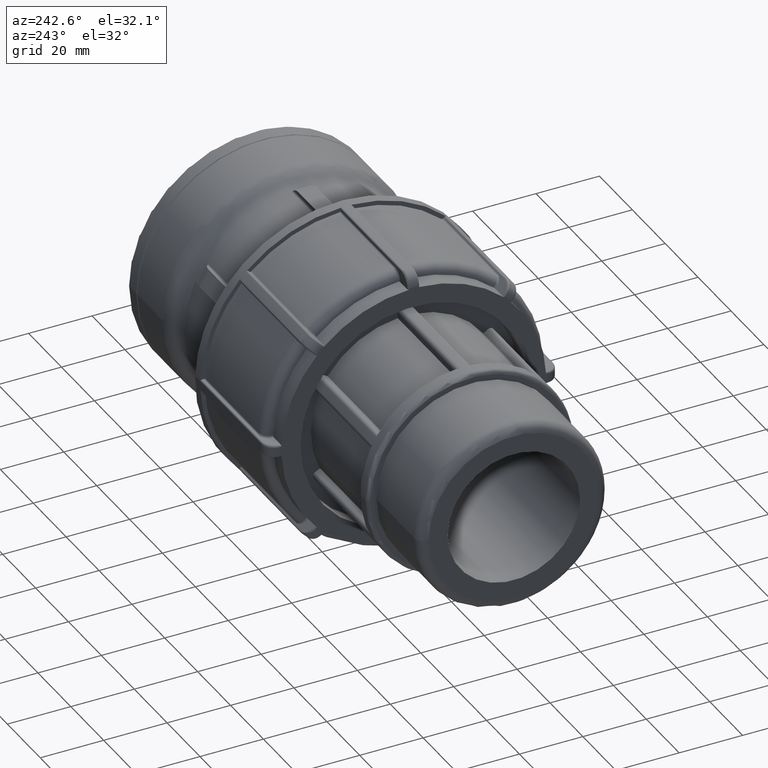
[diagram: clean part render]
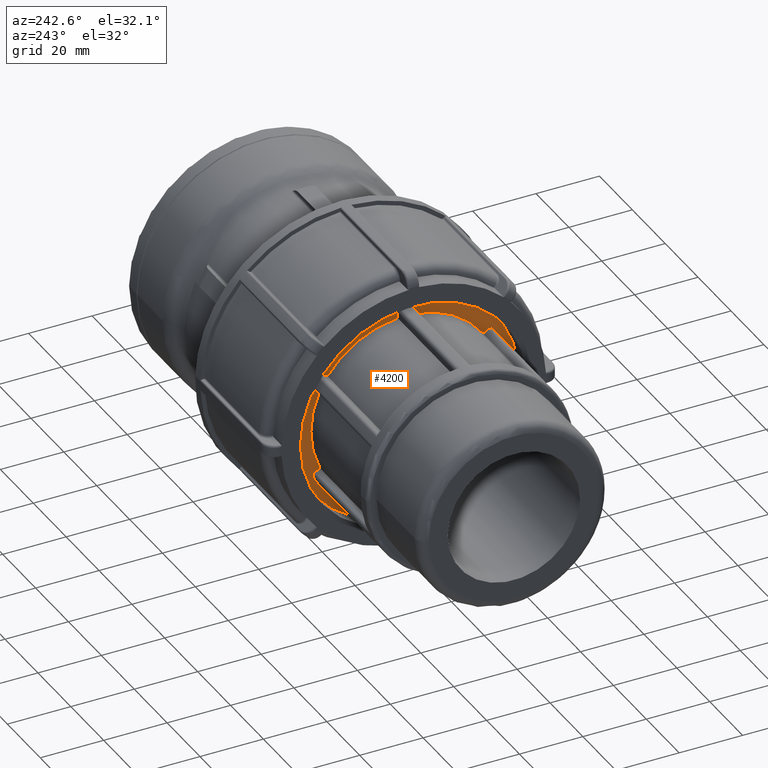
[diagram: same view with one face highlighted and labeled with its STEP entity id]
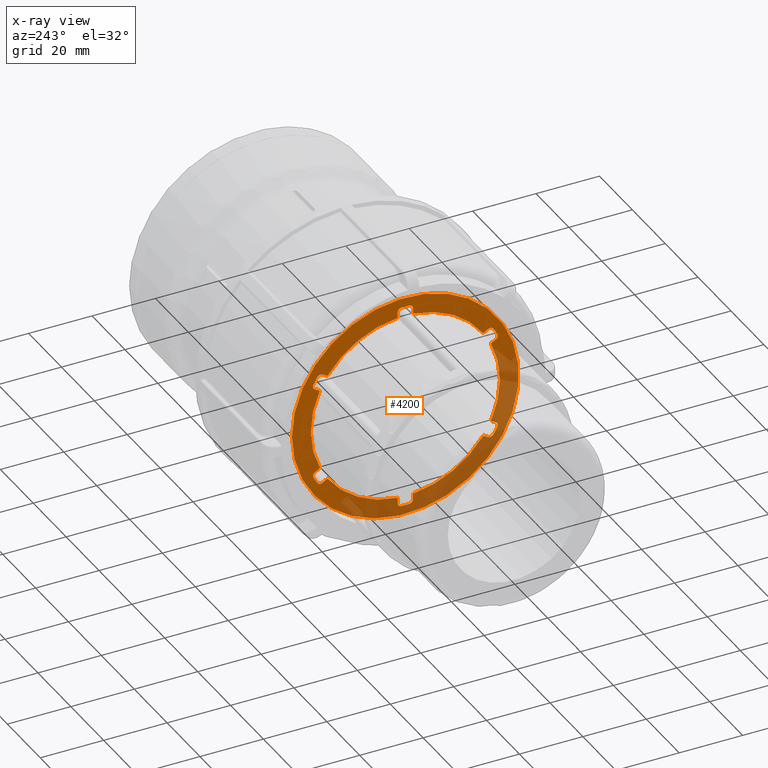
[diagram: x-ray of the same camera — body ghosted, the highlighted face saturated]
A machine part, auxiliary view. The second image highlights one B-rep face of the part: STEP entity #4200.
The next image is the same camera in x-ray: the body ghosted, the highlighted face saturated — about 39% of this face is hidden behind the body in this view.
In plain terms, the highlighted planar face has unit normal (-1, 0, 0).
Its self-contained STEP definition (entity closure, byte-faithful):
#67=FACE_BOUND('',#1218,.T.);
#136=PLANE('',#4620);
#152=LINE('',#5878,#399);
#167=LINE('',#5978,#414);
#172=LINE('',#6034,#419);
#177=LINE('',#6090,#424);
#182=LINE('',#6146,#429);
#189=LINE('',#6211,#436);
#191=LINE('',#6218,#438);
#381=LINE('',#8843,#628);
#384=LINE('',#8849,#631);
#387=LINE('',#8855,#634);
#390=LINE('',#8861,#637);
#391=LINE('',#8867,#638);
#399=VECTOR('',#4705,1.86145163890618);
#414=VECTOR('',#4760,1.86145163890618);
#419=VECTOR('',#4779,1.86145163890618);
#424=VECTOR('',#4798,1.86145163890618);
#429=VECTOR('',#4817,1.86145163890617);
#436=VECTOR('',#4846,1.86145163890617);
#438=VECTOR('',#4854,1.86145163890618);
#628=VECTOR('',#5672,1.86145163890618);
#631=VECTOR('',#5677,1.86145163890618);
#634=VECTOR('',#5682,1.86145163890618);
#637=VECTOR('',#5687,1.86145163890618);
#638=VECTOR('',#5694,1.86145163890618);
#957=FACE_OUTER_BOUND('',#1217,.T.);
#1217=EDGE_LOOP('',(#3795));
#1218=EDGE_LOOP('',(#3796,#3797,#3798,#3799,#3800,#3801,#3802,#3803,#3804,
#3805,#3806,#3807,#3808,#3809,#3810,#3811,#3812,#3813,#3814,#3815,#3816,
#3817,#3818,#3819,#3820,#3821,#3822,#3823,#3824,#3825,#3826,#3827,#3828,
#3829,#3830,#3831));
#1421=CIRCLE('',#4244,1.19228);
#1422=CIRCLE('',#4246,1.19228);
#1424=CIRCLE('',#4250,32.7877);
#1426=CIRCLE('',#4252,32.7877);
#1428=CIRCLE('',#4254,32.7877);
#1430=CIRCLE('',#4256,32.7877);
#1432=CIRCLE('',#4258,32.7877);
#1434=CIRCLE('',#4260,32.7877);
#1436=CIRCLE('',#4264,1.19228);
#1437=CIRCLE('',#4266,1.19228);
#1439=CIRCLE('',#4271,1.19228);
#1440=CIRCLE('',#4273,1.19228);
#1442=CIRCLE('',#4278,1.19228);
#1443=CIRCLE('',#4280,1.19228);
#1445=CIRCLE('',#4285,1.19228);
#1446=CIRCLE('',#4287,1.19228);
#1450=CIRCLE('',#4296,1.19228);
#1451=CIRCLE('',#4298,1.19228);
#1627=CIRCLE('',#4621,35.7684);
#1628=CIRCLE('',#4622,29.807);
#1629=CIRCLE('',#4623,29.807);
#1630=CIRCLE('',#4624,29.807);
#1631=CIRCLE('',#4625,29.807);
#1632=CIRCLE('',#4626,29.807);
#1633=CIRCLE('',#4627,29.807);
#1658=VERTEX_POINT('',#5865);
#1659=VERTEX_POINT('',#5867);
#1660=VERTEX_POINT('',#5871);
#1661=VERTEX_POINT('',#5873);
#1662=VERTEX_POINT('',#5877);
#1665=VERTEX_POINT('',#5885);
#1668=VERTEX_POINT('',#5891);
#1669=VERTEX_POINT('',#5893);
#1672=VERTEX_POINT('',#5899);
#1673=VERTEX_POINT('',#5901);
#1676=VERTEX_POINT('',#5907);
#1677=VERTEX_POINT('',#5909);
#1680=VERTEX_POINT('',#5915);
#1681=VERTEX_POINT('',#5917);
#1684=VERTEX_POINT('',#5923);
#1689=VERTEX_POINT('',#5969);
#1690=VERTEX_POINT('',#5973);
#1691=VERTEX_POINT('',#5977);
#1697=VERTEX_POINT('',#6025);
#1698=VERTEX_POINT('',#6029);
#1699=VERTEX_POINT('',#6033);
#1705=VERTEX_POINT('',#6081);
#1706=VERTEX_POINT('',#6085);
#1707=VERTEX_POINT('',#6089);
#1713=VERTEX_POINT('',#6137);
#1714=VERTEX_POINT('',#6141);
#1715=VERTEX_POINT('',#6145);
#1723=VERTEX_POINT('',#6199);
#1724=VERTEX_POINT('',#6203);
#1726=VERTEX_POINT('',#6209);
#1728=VERTEX_POINT('',#6217);
#2053=VERTEX_POINT('',#8841);
#2055=VERTEX_POINT('',#8847);
#2057=VERTEX_POINT('',#8853);
#2059=VERTEX_POINT('',#8859);
#2060=VERTEX_POINT('',#8863);
#2061=VERTEX_POINT('',#8866);
#2077=EDGE_CURVE('',#1658,#1659,#1421,.F.);
#2080=EDGE_CURVE('',#1660,#1661,#1422,.F.);
#2082=EDGE_CURVE('',#1662,#1659,#152,.T.);
#2086=EDGE_CURVE('',#1665,#1661,#1424,.T.);
#2090=EDGE_CURVE('',#1669,#1668,#1426,.T.);
#2094=EDGE_CURVE('',#1673,#1672,#1428,.T.);
#2098=EDGE_CURVE('',#1677,#1676,#1430,.T.);
#2102=EDGE_CURVE('',#1681,#1680,#1432,.T.);
#2106=EDGE_CURVE('',#1658,#1684,#1434,.T.);
#2112=EDGE_CURVE('',#1681,#1689,#1436,.F.);
#2115=EDGE_CURVE('',#1690,#1684,#1437,.F.);
#2116=EDGE_CURVE('',#1691,#1689,#167,.T.);
#2124=EDGE_CURVE('',#1677,#1697,#1439,.F.);
#2127=EDGE_CURVE('',#1698,#1680,#1440,.F.);
#2128=EDGE_CURVE('',#1699,#1697,#172,.T.);
#2136=EDGE_CURVE('',#1673,#1705,#1442,.F.);
#2139=EDGE_CURVE('',#1706,#1676,#1443,.F.);
#2140=EDGE_CURVE('',#1707,#1705,#177,.T.);
#2148=EDGE_CURVE('',#1669,#1713,#1445,.F.);
#2151=EDGE_CURVE('',#1714,#1672,#1446,.F.);
#2152=EDGE_CURVE('',#1715,#1713,#182,.T.);
#2163=EDGE_CURVE('',#1723,#1668,#1450,.F.);
#2164=EDGE_CURVE('',#1665,#1724,#1451,.F.);
#2168=EDGE_CURVE('',#1723,#1726,#189,.T.);
#2171=EDGE_CURVE('',#1728,#1724,#191,.T.);
#2663=EDGE_CURVE('',#1714,#2053,#381,.T.);
#2666=EDGE_CURVE('',#1706,#2055,#384,.T.);
#2669=EDGE_CURVE('',#1698,#2057,#387,.T.);
#2672=EDGE_CURVE('',#1690,#2059,#390,.T.);
#2673=EDGE_CURVE('',#2060,#2060,#1627,.T.);
#2674=EDGE_CURVE('',#1726,#1728,#1628,.T.);
#2675=EDGE_CURVE('',#1660,#2061,#391,.T.);
#2676=EDGE_CURVE('',#2061,#1662,#1629,.T.);
#2677=EDGE_CURVE('',#2059,#1691,#1630,.T.);
#2678=EDGE_CURVE('',#2057,#1699,#1631,.T.);
#2679=EDGE_CURVE('',#2055,#1707,#1632,.T.);
#2680=EDGE_CURVE('',#2053,#1715,#1633,.T.);
#3795=ORIENTED_EDGE('',*,*,#2673,.F.);
#3796=ORIENTED_EDGE('',*,*,#2152,.T.);
#3797=ORIENTED_EDGE('',*,*,#2148,.F.);
#3798=ORIENTED_EDGE('',*,*,#2090,.T.);
#3799=ORIENTED_EDGE('',*,*,#2163,.F.);
#3800=ORIENTED_EDGE('',*,*,#2168,.T.);
#3801=ORIENTED_EDGE('',*,*,#2674,.T.);
#3802=ORIENTED_EDGE('',*,*,#2171,.T.);
#3803=ORIENTED_EDGE('',*,*,#2164,.F.);
#3804=ORIENTED_EDGE('',*,*,#2086,.T.);
#3805=ORIENTED_EDGE('',*,*,#2080,.F.);
#3806=ORIENTED_EDGE('',*,*,#2675,.T.);
#3807=ORIENTED_EDGE('',*,*,#2676,.T.);
#3808=ORIENTED_EDGE('',*,*,#2082,.T.);
#3809=ORIENTED_EDGE('',*,*,#2077,.F.);
#3810=ORIENTED_EDGE('',*,*,#2106,.T.);
#3811=ORIENTED_EDGE('',*,*,#2115,.F.);
#3812=ORIENTED_EDGE('',*,*,#2672,.T.);
#3813=ORIENTED_EDGE('',*,*,#2677,.T.);
#3814=ORIENTED_EDGE('',*,*,#2116,.T.);
#3815=ORIENTED_EDGE('',*,*,#2112,.F.);
#3816=ORIENTED_EDGE('',*,*,#2102,.T.);
#3817=ORIENTED_EDGE('',*,*,#2127,.F.);
#3818=ORIENTED_EDGE('',*,*,#2669,.T.);
#3819=ORIENTED_EDGE('',*,*,#2678,.T.);
#3820=ORIENTED_EDGE('',*,*,#2128,.T.);
#3821=ORIENTED_EDGE('',*,*,#2124,.F.);
#3822=ORIENTED_EDGE('',*,*,#2098,.T.);
#3823=ORIENTED_EDGE('',*,*,#2139,.F.);
#3824=ORIENTED_EDGE('',*,*,#2666,.T.);
#3825=ORIENTED_EDGE('',*,*,#2679,.T.);
#3826=ORIENTED_EDGE('',*,*,#2140,.T.);
#3827=ORIENTED_EDGE('',*,*,#2136,.F.);
#3828=ORIENTED_EDGE('',*,*,#2094,.T.);
#3829=ORIENTED_EDGE('',*,*,#2151,.F.);
#3830=ORIENTED_EDGE('',*,*,#2663,.T.);
#3831=ORIENTED_EDGE('',*,*,#2680,.T.);
#4200=ADVANCED_FACE('',(#957,#67),#136,.T.);
#4244=AXIS2_PLACEMENT_3D('',#5868,#4694,#4695);
#4246=AXIS2_PLACEMENT_3D('',#5874,#4700,#4701);
#4250=AXIS2_PLACEMENT_3D('',#5886,#4712,#4713);
#4252=AXIS2_PLACEMENT_3D('',#5894,#4718,#4719);
#4254=AXIS2_PLACEMENT_3D('',#5902,#4724,#4725);
#4256=AXIS2_PLACEMENT_3D('',#5910,#4730,#4731);
#4258=AXIS2_PLACEMENT_3D('',#5918,#4736,#4737);
#4260=AXIS2_PLACEMENT_3D('',#5925,#4742,#4743);
#4264=AXIS2_PLACEMENT_3D('',#5970,#4750,#4751);
#4266=AXIS2_PLACEMENT_3D('',#5975,#4756,#4757);
#4271=AXIS2_PLACEMENT_3D('',#6026,#4769,#4770);
#4273=AXIS2_PLACEMENT_3D('',#6031,#4775,#4776);
#4278=AXIS2_PLACEMENT_3D('',#6082,#4788,#4789);
#4280=AXIS2_PLACEMENT_3D('',#6087,#4794,#4795);
#4285=AXIS2_PLACEMENT_3D('',#6138,#4807,#4808);
#4287=AXIS2_PLACEMENT_3D('',#6143,#4813,#4814);
#4296=AXIS2_PLACEMENT_3D('',#6201,#4835,#4836);
#4298=AXIS2_PLACEMENT_3D('',#6204,#4839,#4840);
#4620=AXIS2_PLACEMENT_3D('',#8862,#5688,#5689);
#4621=AXIS2_PLACEMENT_3D('',#8864,#5690,#5691);
#4622=AXIS2_PLACEMENT_3D('',#8865,#5692,#5693);
#4623=AXIS2_PLACEMENT_3D('',#8868,#5695,#5696);
#4624=AXIS2_PLACEMENT_3D('',#8869,#5697,#5698);
#4625=AXIS2_PLACEMENT_3D('',#8870,#5699,#5700);
#4626=AXIS2_PLACEMENT_3D('',#8871,#5701,#5702);
#4627=AXIS2_PLACEMENT_3D('',#8872,#5703,#5704);
#4694=DIRECTION('center_axis',(1.,0.,0.));
#4695=DIRECTION('ref_axis',(0.,-0.240544693327652,0.970638063601416));
#4700=DIRECTION('center_axis',(1.,0.,0.));
#4701=DIRECTION('ref_axis',(0.,-0.720324874295137,0.69363684696799));
#4705=DIRECTION('',(0.,-0.866025403784439,0.5));
#4712=DIRECTION('center_axis',(1.,0.,0.));
#4713=DIRECTION('ref_axis',(0.,0.,-1.));
#4718=DIRECTION('center_axis',(1.,0.,0.));
#4719=DIRECTION('ref_axis',(0.,-0.866025403784439,-0.499999999999999));
#4724=DIRECTION('center_axis',(1.,0.,0.));
#4725=DIRECTION('ref_axis',(0.,-0.866025403784438,0.5));
#4730=DIRECTION('center_axis',(1.,0.,0.));
#4731=DIRECTION('ref_axis',(0.,1.35443843224765E-16,1.));
#4736=DIRECTION('center_axis',(1.,0.,0.));
#4737=DIRECTION('ref_axis',(0.,0.866025403784439,0.5));
#4742=DIRECTION('center_axis',(1.,0.,0.));
#4743=DIRECTION('ref_axis',(0.,0.866025403784439,-0.5));
#4750=DIRECTION('center_axis',(1.,0.,0.));
#4751=DIRECTION('ref_axis',(0.,-0.960869567622788,0.277001216633424));
#4756=DIRECTION('center_axis',(1.,0.,0.));
#4757=DIRECTION('ref_axis',(0.,-0.960869567622787,-0.277001216633426));
#4760=DIRECTION('',(0.,-0.866025403784439,-0.5));
#4769=DIRECTION('center_axis',(1.,0.,0.));
#4770=DIRECTION('ref_axis',(0.,-0.720324874295136,-0.693636846967992));
#4775=DIRECTION('center_axis',(1.,0.,0.));
#4776=DIRECTION('ref_axis',(0.,-0.240544693327657,-0.970638063601414));
#4779=DIRECTION('',(0.,-5.55111512312578E-17,-1.));
#4788=DIRECTION('center_axis',(1.,0.,0.));
#4789=DIRECTION('ref_axis',(0.,0.240544693327653,-0.970638063601415));
#4794=DIRECTION('center_axis',(1.,0.,0.));
#4795=DIRECTION('ref_axis',(0.,0.720324874295137,-0.693636846967991));
#4798=DIRECTION('',(0.,0.866025403784438,-0.5));
#4807=DIRECTION('center_axis',(1.,0.,0.));
#4808=DIRECTION('ref_axis',(0.,0.960869567622788,-0.277001216633424));
#4813=DIRECTION('center_axis',(1.,0.,0.));
#4814=DIRECTION('ref_axis',(0.,0.960869567622788,0.277001216633424));
#4817=DIRECTION('',(0.,0.866025403784439,0.499999999999999));
#4835=DIRECTION('center_axis',(1.,0.,0.));
#4836=DIRECTION('ref_axis',(0.,0.240544693327658,0.970638063601414));
#4839=DIRECTION('center_axis',(1.,0.,0.));
#4840=DIRECTION('ref_axis',(0.,0.720324874295137,0.69363684696799));
#4846=DIRECTION('',(0.,-0.866025403784439,-0.499999999999999));
#4854=DIRECTION('',(0.,-9.28463557481304E-17,1.));
#5672=DIRECTION('',(0.,-0.866025403784438,0.5));
#5677=DIRECTION('',(0.,1.66533453693773E-16,1.));
#5682=DIRECTION('',(0.,0.866025403784439,0.5));
#5687=DIRECTION('',(0.,0.866025403784439,-0.5));
#5688=DIRECTION('center_axis',(-1.,0.,0.));
#5689=DIRECTION('ref_axis',(0.,0.,1.));
#5690=DIRECTION('center_axis',(1.,0.,0.));
#5691=DIRECTION('ref_axis',(0.,0.,-1.));
#5692=DIRECTION('center_axis',(1.,0.,0.));
#5693=DIRECTION('ref_axis',(0.,0.,-1.));
#5694=DIRECTION('',(0.,0.,-1.));
#5695=DIRECTION('center_axis',(1.,0.,0.));
#5696=DIRECTION('ref_axis',(0.,0.,-1.));
#5697=DIRECTION('center_axis',(1.,0.,0.));
#5698=DIRECTION('ref_axis',(0.,0.,-1.));
#5699=DIRECTION('center_axis',(1.,0.,0.));
#5700=DIRECTION('ref_axis',(0.,0.,-1.));
#5701=DIRECTION('center_axis',(1.,0.,0.));
#5702=DIRECTION('ref_axis',(0.,0.,-1.));
#5703=DIRECTION('center_axis',(1.,0.,0.));
#5704=DIRECTION('ref_axis',(0.,0.,-1.));
#5865=CARTESIAN_POINT('',(-91.97,-27.7561209345052,17.4536821891291));
#5867=CARTESIAN_POINT('',(-91.97,-26.1506674459777,17.8515476052213));
#5868=CARTESIAN_POINT('Origin',(-91.97,-26.7468074459777,16.8190028367971));
#5871=CARTESIAN_POINT('',(-91.97,-2.38456,31.5729161367461));
#5873=CARTESIAN_POINT('',(-91.97,-1.23727169811321,32.7643469343591));
#5874=CARTESIAN_POINT('Origin',(-91.97,-1.19228,31.5729161367461));
#5877=CARTESIAN_POINT('',(-91.97,-24.5386030387688,16.9208217857682));
#5878=CARTESIAN_POINT('',(-91.97,1.7399884806156,1.74886989812736));
#5885=CARTESIAN_POINT('',(-91.97,1.2372716981132,32.7643469343591));
#5886=CARTESIAN_POINT('Origin',(-91.97,0.,0.));
#5891=CARTESIAN_POINT('',(-91.97,27.7561209345052,17.4536821891291));
#5893=CARTESIAN_POINT('',(-91.97,28.9933926326184,15.31066474523));
#5894=CARTESIAN_POINT('Origin',(-91.97,0.,0.));
#5899=CARTESIAN_POINT('',(-91.97,28.9933926326184,-15.31066474523));
#5901=CARTESIAN_POINT('',(-91.97,27.7561209345052,-17.4536821891291));
#5902=CARTESIAN_POINT('Origin',(-91.97,0.,0.));
#5907=CARTESIAN_POINT('',(-91.97,1.2372716981132,-32.7643469343591));
#5909=CARTESIAN_POINT('',(-91.97,-1.23727169811321,-32.7643469343591));
#5910=CARTESIAN_POINT('Origin',(-91.97,0.,0.));
#5915=CARTESIAN_POINT('',(-91.97,-27.7561209345052,-17.4536821891291));
#5917=CARTESIAN_POINT('',(-91.97,-28.9933926326184,-15.31066474523));
#5918=CARTESIAN_POINT('Origin',(-91.97,0.,0.));
#5923=CARTESIAN_POINT('',(-91.97,-28.9933926326184,15.31066474523));
#5925=CARTESIAN_POINT('Origin',(-91.97,0.,0.));
#5969=CARTESIAN_POINT('',(-91.97,-28.5352274459777,-13.7213685315248));
#5970=CARTESIAN_POINT('Origin',(-91.97,-27.9390874459777,-14.7539132999489));
#5973=CARTESIAN_POINT('',(-91.97,-28.5352274459777,13.7213685315248));
#5975=CARTESIAN_POINT('Origin',(-91.97,-27.9390874459777,14.7539132999489));
#5977=CARTESIAN_POINT('',(-91.97,-26.9231630387688,-12.7906427120717));
#5978=CARTESIAN_POINT('',(-91.97,-0.644571519384396,2.38130917556908));
#6025=CARTESIAN_POINT('',(-91.97,-2.38456,-31.5729161367461));
#6026=CARTESIAN_POINT('Origin',(-91.97,-1.19228000000001,-31.5729161367461));
#6029=CARTESIAN_POINT('',(-91.97,-26.1506674459777,-17.8515476052213));
#6031=CARTESIAN_POINT('Origin',(-91.97,-26.7468074459777,-16.8190028367971));
#6033=CARTESIAN_POINT('',(-91.97,-2.38456,-29.7114644978399));
#6034=CARTESIAN_POINT('',(-91.97,-2.38456,-14.8557322489199));
#6081=CARTESIAN_POINT('',(-91.97,26.1506674459777,-17.8515476052213));
#6082=CARTESIAN_POINT('Origin',(-91.97,26.7468074459777,-16.8190028367972));
#6085=CARTESIAN_POINT('',(-91.97,2.38456,-31.5729161367461));
#6087=CARTESIAN_POINT('Origin',(-91.97,1.19228,-31.5729161367461));
#6089=CARTESIAN_POINT('',(-91.97,24.5386030387688,-16.9208217857682));
#6090=CARTESIAN_POINT('',(-91.97,25.0863115193844,-17.237041424489));
#6137=CARTESIAN_POINT('',(-91.97,28.5352274459777,13.7213685315248));
#6138=CARTESIAN_POINT('Origin',(-91.97,27.9390874459777,14.7539132999489));
#6141=CARTESIAN_POINT('',(-91.97,28.5352274459777,-13.7213685315248));
#6143=CARTESIAN_POINT('Origin',(-91.97,27.9390874459777,-14.7539132999489));
#6145=CARTESIAN_POINT('',(-91.97,26.9231630387688,12.7906427120717));
#6146=CARTESIAN_POINT('',(-91.97,27.4708715193844,13.1068623507926));
#6199=CARTESIAN_POINT('',(-91.97,26.1506674459777,17.8515476052212));
#6201=CARTESIAN_POINT('Origin',(-91.97,26.7468074459777,16.8190028367971));
#6203=CARTESIAN_POINT('',(-91.97,2.38456,31.5729161367461));
#6204=CARTESIAN_POINT('Origin',(-91.97,1.19228,31.5729161367461));
#6209=CARTESIAN_POINT('',(-91.97,24.5386030387688,16.9208217857681));
#6211=CARTESIAN_POINT('',(-91.97,26.3807637025698,17.9843937409042));
#6217=CARTESIAN_POINT('',(-91.97,2.38456,29.7114644978399));
#6218=CARTESIAN_POINT('',(-91.97,2.38456,14.8557322489199));
#8841=CARTESIAN_POINT('',(-91.97,26.9231630387688,-12.7906427120717));
#8843=CARTESIAN_POINT('',(-91.97,28.7653237025698,-13.8542146672078));
#8847=CARTESIAN_POINT('',(-91.97,2.38456,-29.7114644978399));
#8849=CARTESIAN_POINT('',(-91.97,2.38456,-16.3504368817503));
#8853=CARTESIAN_POINT('',(-91.97,-24.5386030387688,-16.9208217857682));
#8855=CARTESIAN_POINT('',(-91.97,0.445536297430235,-2.49622221454254));
#8859=CARTESIAN_POINT('',(-91.97,-26.9231630387688,12.7906427120717));
#8861=CARTESIAN_POINT('',(-91.97,-1.93902370256977,-1.63395685915391));
#8862=CARTESIAN_POINT('Origin',(-91.97,35.7684,0.));
#8863=CARTESIAN_POINT('',(-91.97,35.7684,0.));
#8864=CARTESIAN_POINT('Origin',(-91.97,0.,0.));
#8865=CARTESIAN_POINT('Origin',(-91.97,0.,0.));
#8866=CARTESIAN_POINT('',(-91.97,-2.38456,29.7114644978399));
#8867=CARTESIAN_POINT('',(-91.97,-2.38456,16.3504368817503));
#8868=CARTESIAN_POINT('Origin',(-91.97,0.,0.));
#8869=CARTESIAN_POINT('Origin',(-91.97,0.,0.));
#8870=CARTESIAN_POINT('Origin',(-91.97,0.,0.));
#8871=CARTESIAN_POINT('Origin',(-91.97,0.,0.));
#8872=CARTESIAN_POINT('Origin',(-91.97,0.,0.));